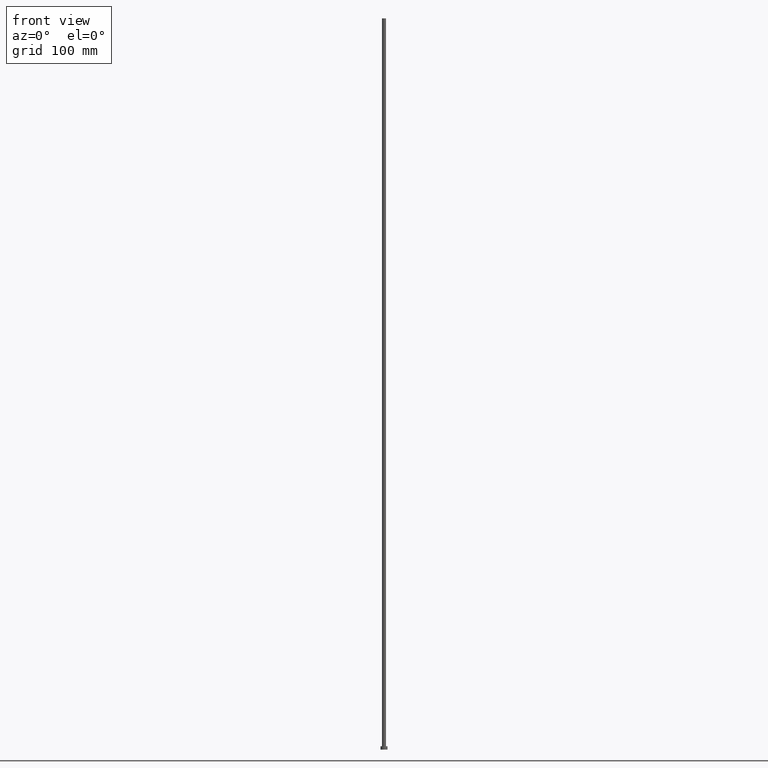
[diagram: clean part render]
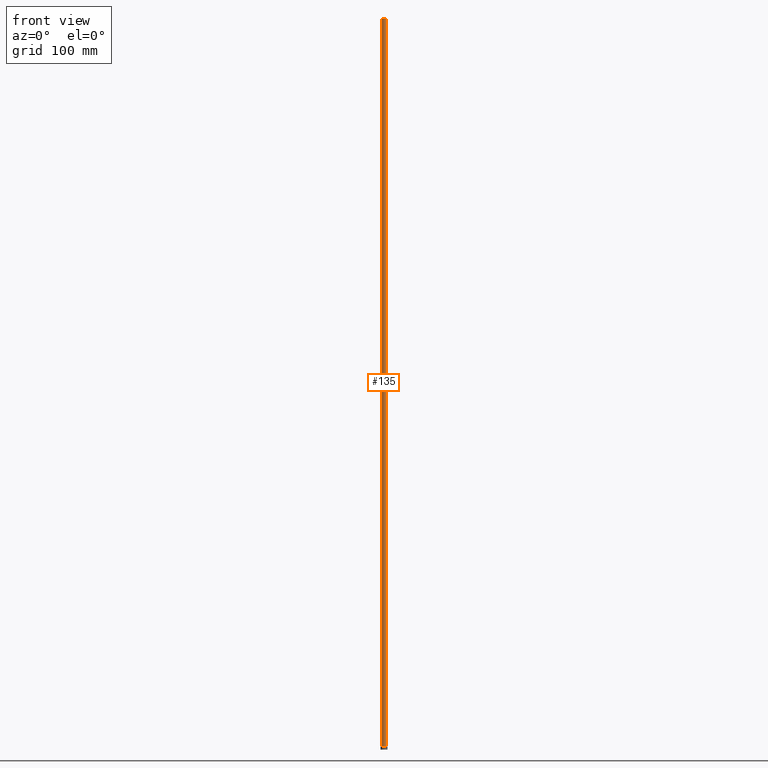
[diagram: same view with one face highlighted and labeled with its STEP entity id]
A machine part, front view. The second image highlights one B-rep face of the part: STEP entity #135.
In plain terms, the highlighted cylindrical surface (edge-blend (fillet) strip) has radius 1.75 mm, axis along (-0, -0, -1).
Its self-contained STEP definition (entity closure, byte-faithful):
#11 = ORIENTED_EDGE ( 'NONE', *, *, #71, .T. ) ;
#14 = EDGE_LOOP ( 'NONE', ( #220, #128, #69, #11 ) ) ;
#41 = LINE ( 'NONE', #161, #139 ) ;
#45 = DIRECTION ( 'NONE',  ( -0.000000000000000000, -0.000000000000000000, -1.000000000000000000 ) ) ;
#46 = CARTESIAN_POINT ( 'NONE',  ( 0.000000000000000000, 0.000000000000000000, 3.000000000000000000 ) ) ;
#47 = DIRECTION ( 'NONE',  ( 0.000000000000000000, 0.000000000000000000, 1.000000000000000000 ) ) ;
#51 = EDGE_CURVE ( 'NONE', #159, #103, #124, .T. ) ;
#58 = CARTESIAN_POINT ( 'NONE',  ( 1.750000000000000000, 2.143131898507868297E-16, 630.0000000000000000 ) ) ;
#60 = LINE ( 'NONE', #61, #96 ) ;
#61 = CARTESIAN_POINT ( 'NONE',  ( -1.750000000000000000, 0.000000000000000000, 630.0000000000000000 ) ) ;
#62 = DIRECTION ( 'NONE',  ( -0.000000000000000000, -0.000000000000000000, -1.000000000000000000 ) ) ;
#69 = ORIENTED_EDGE ( 'NONE', *, *, #219, .T. ) ;
#71 = EDGE_CURVE ( 'NONE', #218, #180, #176, .T. ) ;
#77 = CARTESIAN_POINT ( 'NONE',  ( 1.750000000000000000, 2.143131898507868297E-16, 3.000000000000000000 ) ) ;
#84 = DIRECTION ( 'NONE',  ( 1.000000000000000000, 0.000000000000000000, 0.000000000000000000 ) ) ;
#96 = VECTOR ( 'NONE', #147, 1000.000000000000000 ) ;
#98 = DIRECTION ( 'NONE',  ( -1.000000000000000000, 0.000000000000000000, 0.000000000000000000 ) ) ;
#103 = VERTEX_POINT ( 'NONE', #58 ) ;
#104 = DIRECTION ( 'NONE',  ( 0.000000000000000000, 0.000000000000000000, 1.000000000000000000 ) ) ;
#116 = AXIS2_PLACEMENT_3D ( 'NONE', #242, #62, #98 ) ;
#124 = CIRCLE ( 'NONE', #142, 1.750000000000000000 ) ;
#128 = ORIENTED_EDGE ( 'NONE', *, *, #51, .F. ) ;
#133 = AXIS2_PLACEMENT_3D ( 'NONE', #46, #104, #84 ) ;
#135 = ADVANCED_FACE ( 'NONE', ( #158 ), #179, .T. ) ;
#139 = VECTOR ( 'NONE', #45, 1000.000000000000000 ) ;
#142 = AXIS2_PLACEMENT_3D ( 'NONE', #230, #47, #225 ) ;
#147 = DIRECTION ( 'NONE',  ( -0.000000000000000000, -0.000000000000000000, -1.000000000000000000 ) ) ;
#158 = FACE_OUTER_BOUND ( 'NONE', #14, .T. ) ;
#159 = VERTEX_POINT ( 'NONE', #201 ) ;
#160 = EDGE_CURVE ( 'NONE', #103, #180, #41, .T. ) ;
#161 = CARTESIAN_POINT ( 'NONE',  ( 1.750000000000000000, 2.143131898507868297E-16, 630.0000000000000000 ) ) ;
#176 = CIRCLE ( 'NONE', #133, 1.750000000000000000 ) ;
#179 = CYLINDRICAL_SURFACE ( 'NONE', #116, 1.750000000000000000 ) ;
#180 = VERTEX_POINT ( 'NONE', #77 ) ;
#201 = CARTESIAN_POINT ( 'NONE',  ( -1.750000000000000000, 0.000000000000000000, 630.0000000000000000 ) ) ;
#218 = VERTEX_POINT ( 'NONE', #247 ) ;
#219 = EDGE_CURVE ( 'NONE', #159, #218, #60, .T. ) ;
#220 = ORIENTED_EDGE ( 'NONE', *, *, #160, .F. ) ;
#225 = DIRECTION ( 'NONE',  ( 1.000000000000000000, 0.000000000000000000, 0.000000000000000000 ) ) ;
#230 = CARTESIAN_POINT ( 'NONE',  ( 0.000000000000000000, 0.000000000000000000, 630.0000000000000000 ) ) ;
#242 = CARTESIAN_POINT ( 'NONE',  ( 0.000000000000000000, 0.000000000000000000, 630.0000000000000000 ) ) ;
#247 = CARTESIAN_POINT ( 'NONE',  ( -1.750000000000000000, 0.000000000000000000, 3.000000000000000000 ) ) ;